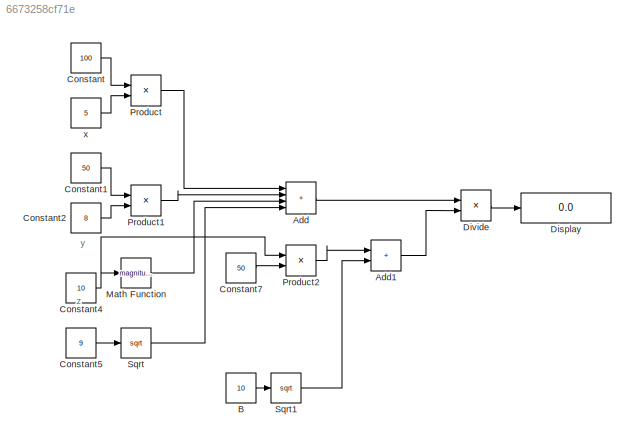
MODEL slx_6673258cf71e
KIND model
CONFIG AbsTol = auto
CONFIG EnableMultiTasking = off
CONFIG FixedStep = auto
CONFIG MaxStep = auto
CONFIG MinStep = auto
CONFIG RelTol = 1e-3
CONFIG SampleTimeConstraint = Unconstrained
CONFIG SolverName = VariableStepAuto
CONFIG StartTime = 0.0
CONFIG StopTime = 10.0
BLOCK [Sum] Add
  IconShape = rectangular
  Inputs = ++++
  Ports = [4, 1]
BLOCK [Sum] Add1
  IconShape = rectangular
  Ports = [2, 1]
BLOCK [Constant] B
  Value = 10
BLOCK [Constant] Constant
  Value = 100
BLOCK [Constant] Constant1
  Value = 50
BLOCK [Constant] Constant2
  Value = 8
BLOCK [Constant] Constant4
  Value = 10
BLOCK [Constant] Constant5
  Value = 9
BLOCK [Constant] Constant7
  Value = 50
BLOCK [Display] Display
  Decimation = 1
  Ports = [1]
BLOCK [Product] Divide
  Inputs = */
  Ports = [2, 1]
BLOCK [Math] Math Function
  Operator = magnitude^2
  Ports = [1, 1]
BLOCK [Product] Product
  Ports = [2, 1]
BLOCK [Product] Product1
  Ports = [2, 1]
BLOCK [Product] Product2
  Ports = [2, 1]
BLOCK [Sqrt] Sqrt
BLOCK [Sqrt] Sqrt1
BLOCK [Constant] x
  Value = 5
ANNOTATION (root): y
ANNOTATION (root): z
LINE Add1:1 -> Divide:2
LINE Add:1 -> Divide:1
LINE B:1 -> Sqrt1:1
LINE Constant1:1 -> Product1:1
LINE Constant2:1 -> Product1:2
NET Constant4:1 -> Math Function:1, Product2:1
LINE Constant5:1 -> Sqrt:1
LINE Constant7:1 -> Product2:2
LINE Constant:1 -> Product:1
LINE Divide:1 -> Display:1
LINE Math Function:1 -> Add:3
LINE Product1:1 -> Add:2
LINE Product2:1 -> Add1:1
LINE Product:1 -> Add:1
LINE Sqrt1:1 -> Add1:2
LINE Sqrt:1 -> Add:4
LINE x:1 -> Product:2
note: NET lines group one-source signal fan-out (src -> all destinations, sorted); 1:1 wires keep LINE
